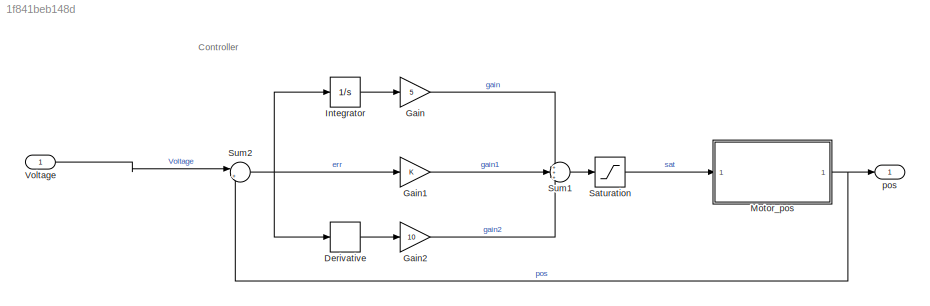
MODEL slx_1f841beb148d
KIND model
CONFIG AbsTol = auto
CONFIG EnableMultiTasking = off
CONFIG FixedStep = 0.01
CONFIG MaxStep = auto
CONFIG MinStep = auto
CONFIG RelTol = 1e-3
CONFIG SampleTimeConstraint = Unconstrained
CONFIG Solver = FixedStepAuto
CONFIG SolverName = FixedStepAuto
CONFIG StartTime = 0.0
CONFIG StopTime = 1
BLOCK [Derivative] Derivative
BLOCK [Gain] Gain
  Gain = 5
  OutDataTypeStr = Inherit: Inherit via internal rule
  ParamDataTypeStr = Inherit: Inherit via internal rule
  SaturateOnIntegerOverflow = off
BLOCK [Gain] Gain1
  OutDataTypeStr = Inherit: Inherit via internal rule
  ParamDataTypeStr = Inherit: Inherit via internal rule
  SaturateOnIntegerOverflow = off
BLOCK [Gain] Gain2
  Gain = 10
  OutDataTypeStr = Inherit: Inherit via internal rule
  ParamDataTypeStr = Inherit: Inherit via internal rule
  SaturateOnIntegerOverflow = off
BLOCK [Integrator] Integrator
  Ports = [1, 1]
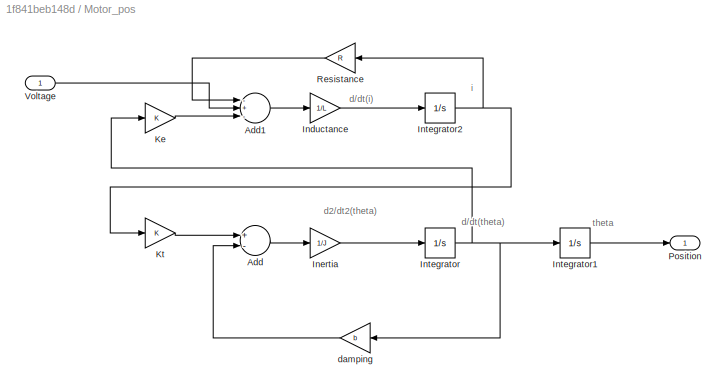
BLOCK [SubSystem] Motor_pos
  Ports = [1, 1]
  RequestExecContextInheritance = off
  Variant = off
BLOCK [Sum] Motor_pos/Add
  InputSameDT = off
  Inputs = +-
  OutDataTypeStr = Inherit: Inherit via internal rule
  Ports = [2, 1]
  SaturateOnIntegerOverflow = off
BLOCK [Sum] Motor_pos/Add1
  InputSameDT = off
  Inputs = -+-
  OutDataTypeStr = Inherit: Inherit via internal rule
  Ports = [3, 1]
  SaturateOnIntegerOverflow = off
BLOCK [Gain] Motor_pos/Inductance
  Gain = 1/L
  OutDataTypeStr = Inherit: Inherit via internal rule
  ParamDataTypeStr = Inherit: Inherit via internal rule
  SaturateOnIntegerOverflow = off
BLOCK [Gain] Motor_pos/Inertia
  Gain = 1/J
  OutDataTypeStr = Inherit: Inherit via internal rule
  ParamDataTypeStr = Inherit: Inherit via internal rule
  SaturateOnIntegerOverflow = off
BLOCK [Integrator] Motor_pos/Integrator
  Ports = [1, 1]
BLOCK [Integrator] Motor_pos/Integrator1
  Ports = [1, 1]
BLOCK [Integrator] Motor_pos/Integrator2
  Ports = [1, 1]
BLOCK [Gain] Motor_pos/Ke
  Gain = K
  OutDataTypeStr = Inherit: Inherit via internal rule
  ParamDataTypeStr = Inherit: Inherit via internal rule
  SaturateOnIntegerOverflow = off
BLOCK [Gain] Motor_pos/Kt
  Gain = K
  OutDataTypeStr = Inherit: Inherit via internal rule
  ParamDataTypeStr = Inherit: Inherit via internal rule
  SaturateOnIntegerOverflow = off
BLOCK [Outport] Motor_pos/Position
  IconDisplay = Port number
BLOCK [Gain] Motor_pos/Resistance
  Gain = R
  OutDataTypeStr = Inherit: Inherit via internal rule
  ParamDataTypeStr = Inherit: Inherit via internal rule
  SaturateOnIntegerOverflow = off
BLOCK [Inport] Motor_pos/Voltage
  IconDisplay = Port number
BLOCK [Gain] Motor_pos/damping
  Gain = b
  OutDataTypeStr = Inherit: Inherit via internal rule
  ParamDataTypeStr = Inherit: Inherit via internal rule
  SaturateOnIntegerOverflow = off
BLOCK [Saturate] Saturation
  InputPortMap = u0
  LowerLimit = -10
  Ports = [1, 1]
  UpperLimit = 10
BLOCK [Sum] Sum1
  IconShape = round
  InputSameDT = off
  Inputs = +++
  OutDataTypeStr = Inherit: Inherit via internal rule
  Ports = [3, 1]
  SaturateOnIntegerOverflow = off
BLOCK [Sum] Sum2
  IconShape = round
  InputSameDT = off
  Inputs = |+-
  OutDataTypeStr = Inherit: Inherit via internal rule
  Ports = [2, 1]
  SaturateOnIntegerOverflow = off
BLOCK [Inport] Voltage
  IconDisplay = Port number
BLOCK [Outport] pos
  IconDisplay = Port number
ANNOTATION (root): Controller
ANNOTATION Motor_pos: d/dt(i)
ANNOTATION Motor_pos: d/dt(theta)
ANNOTATION Motor_pos: d2/dt2(theta)
ANNOTATION Motor_pos: i
ANNOTATION Motor_pos: theta
LINE Derivative:1 -> Gain2:1
LINE Gain1:1 -> Sum1:2
LINE Gain2:1 -> Sum1:3
LINE Gain:1 -> Sum1:1
LINE Integrator:1 -> Gain:1
LINE Motor_pos/Add1:1 -> Motor_pos/Inductance:1
LINE Motor_pos/Add:1 -> Motor_pos/Inertia:1
LINE Motor_pos/Inductance:1 -> Motor_pos/Integrator2:1
LINE Motor_pos/Inertia:1 -> Motor_pos/Integrator:1
LINE Motor_pos/Integrator1:1 -> Motor_pos/Position:1
NET Motor_pos/Integrator2:1 -> Motor_pos/Kt:1, Motor_pos/Resistance:1
NET Motor_pos/Integrator:1 -> Motor_pos/Integrator1:1, Motor_pos/Ke:1, Motor_pos/damping:1
LINE Motor_pos/Ke:1 -> Motor_pos/Add1:3
LINE Motor_pos/Kt:1 -> Motor_pos/Add:1
LINE Motor_pos/Resistance:1 -> Motor_pos/Add1:1
LINE Motor_pos/Voltage:1 -> Motor_pos/Add1:2
LINE Motor_pos/damping:1 -> Motor_pos/Add:2
NET Motor_pos:1 -> Sum2:2, pos:1
LINE Saturation:1 -> Motor_pos:1
LINE Sum1:1 -> Saturation:1
NET Sum2:1 -> Derivative:1, Gain1:1, Integrator:1
LINE Voltage:1 -> Sum2:1
note: NET lines group one-source signal fan-out (src -> all destinations, sorted); 1:1 wires keep LINE
